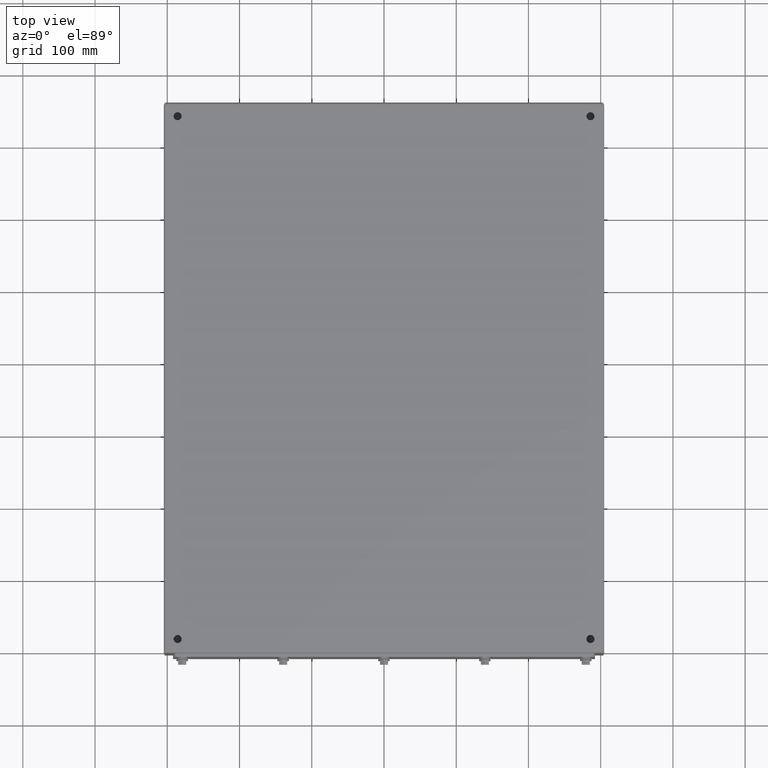
[diagram: clean part render]
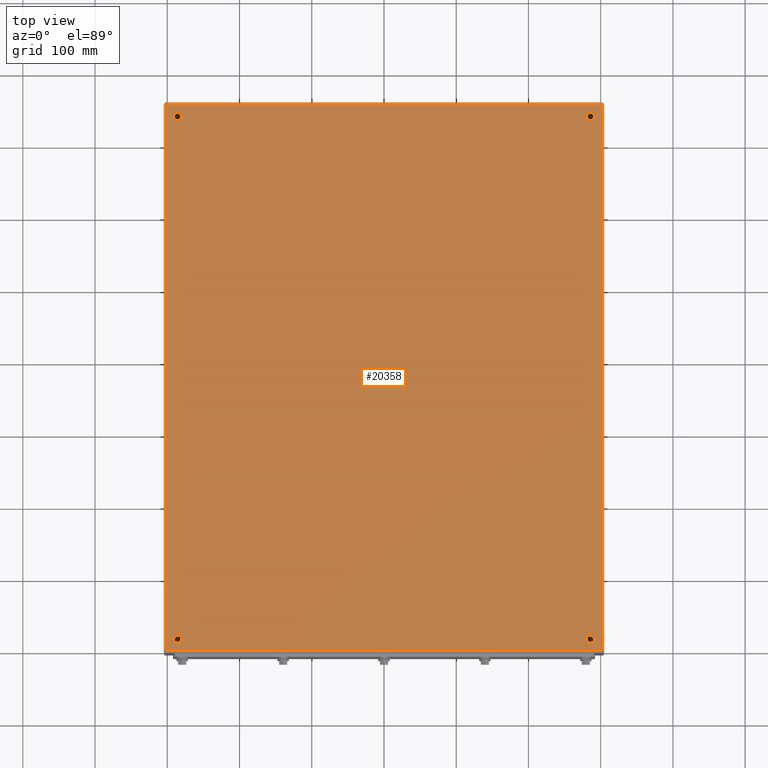
[diagram: same view with one face highlighted and labeled with its STEP entity id]
A machine part, top view. The second image highlights one B-rep face of the part: STEP entity #20358.
In plain terms, the highlighted planar face has unit normal (-0, -0, -1).
Its self-contained STEP definition (entity closure, byte-faithful):
#770=FACE_BOUND('',#3255,.T.);
#771=FACE_BOUND('',#3256,.T.);
#772=FACE_BOUND('',#3257,.T.);
#773=FACE_BOUND('',#3258,.T.);
#1454=PLANE('',#22078);
#2042=FACE_OUTER_BOUND('',#3254,.T.);
#3254=EDGE_LOOP('',(#14171,#14172,#14173,#14174));
#3255=EDGE_LOOP('',(#14175));
#3256=EDGE_LOOP('',(#14176));
#3257=EDGE_LOOP('',(#14177));
#3258=EDGE_LOOP('',(#14178));
#4671=LINE('',#31758,#6163);
#4678=LINE('',#31779,#6170);
#4684=LINE('',#31798,#6176);
#4690=LINE('',#31816,#6182);
#6163=VECTOR('',#24848,0.393700787401575);
#6170=VECTOR('',#24877,0.393700787401575);
#6176=VECTOR('',#24905,0.393700787401575);
#6182=VECTOR('',#24933,0.393700787401575);
#7335=CIRCLE('',#21902,0.21875);
#7337=CIRCLE('',#21905,0.21875);
#7339=CIRCLE('',#21908,0.21875);
#7341=CIRCLE('',#21911,0.21875);
#8411=VERTEX_POINT('',#30496);
#8413=VERTEX_POINT('',#30502);
#8415=VERTEX_POINT('',#30508);
#8417=VERTEX_POINT('',#30514);
#8579=VERTEX_POINT('',#31755);
#8580=VERTEX_POINT('',#31757);
#8583=VERTEX_POINT('',#31778);
#8585=VERTEX_POINT('',#31796);
#10358=EDGE_CURVE('',#8411,#8411,#7335,.T.);
#10361=EDGE_CURVE('',#8413,#8413,#7337,.T.);
#10364=EDGE_CURVE('',#8415,#8415,#7339,.T.);
#10367=EDGE_CURVE('',#8417,#8417,#7341,.T.);
#10647=EDGE_CURVE('',#8580,#8579,#4671,.T.);
#10658=EDGE_CURVE('',#8583,#8580,#4678,.T.);
#10668=EDGE_CURVE('',#8579,#8585,#4684,.T.);
#10678=EDGE_CURVE('',#8585,#8583,#4690,.T.);
#14171=ORIENTED_EDGE('',*,*,#10647,.T.);
#14172=ORIENTED_EDGE('',*,*,#10668,.T.);
#14173=ORIENTED_EDGE('',*,*,#10678,.T.);
#14174=ORIENTED_EDGE('',*,*,#10658,.T.);
#14175=ORIENTED_EDGE('',*,*,#10358,.T.);
#14176=ORIENTED_EDGE('',*,*,#10361,.T.);
#14177=ORIENTED_EDGE('',*,*,#10364,.T.);
#14178=ORIENTED_EDGE('',*,*,#10367,.T.);
#20358=ADVANCED_FACE('',(#2042,#770,#771,#772,#773),#1454,.F.);
#21902=AXIS2_PLACEMENT_3D('',#30497,#24358,#24359);
#21905=AXIS2_PLACEMENT_3D('',#30503,#24365,#24366);
#21908=AXIS2_PLACEMENT_3D('',#30509,#24372,#24373);
#21911=AXIS2_PLACEMENT_3D('',#30515,#24379,#24380);
#22078=AXIS2_PLACEMENT_3D('',#31831,#24958,#24959);
#24358=DIRECTION('center_axis',(0.,0.,1.));
#24359=DIRECTION('ref_axis',(1.,0.,0.));
#24365=DIRECTION('center_axis',(0.,0.,1.));
#24366=DIRECTION('ref_axis',(1.,0.,0.));
#24372=DIRECTION('center_axis',(0.,0.,1.));
#24373=DIRECTION('ref_axis',(1.,0.,0.));
#24379=DIRECTION('center_axis',(0.,0.,1.));
#24380=DIRECTION('ref_axis',(1.,0.,0.));
#24848=DIRECTION('',(-1.,0.,0.));
#24877=DIRECTION('',(1.8800919714783E-16,-1.,0.));
#24905=DIRECTION('',(-3.05514945365224E-16,1.,0.));
#24933=DIRECTION('',(1.,0.,0.));
#24958=DIRECTION('center_axis',(0.,0.,1.));
#24959=DIRECTION('ref_axis',(1.,0.,0.));
#30496=CARTESIAN_POINT('',(0.531249999999996,0.750000000000002,0.));
#30497=CARTESIAN_POINT('Origin',(0.749999999999996,0.750000000000002,0.));
#30502=CARTESIAN_POINT('',(23.03125,0.750000000000002,0.));
#30503=CARTESIAN_POINT('Origin',(23.25,0.750000000000002,0.));
#30508=CARTESIAN_POINT('',(0.531249999999997,29.25,0.));
#30509=CARTESIAN_POINT('Origin',(0.749999999999997,29.25,0.));
#30514=CARTESIAN_POINT('',(23.03125,29.25,0.));
#30515=CARTESIAN_POINT('Origin',(23.25,29.25,0.));
#31755=CARTESIAN_POINT('',(0.120875000000005,0.120875000000006,-1.09273919746571E-17));
#31757=CARTESIAN_POINT('',(23.879125,0.120875000000001,-1.09273919746571E-17));
#31758=CARTESIAN_POINT('',(17.9395625,0.120875000000001,0.));
#31778=CARTESIAN_POINT('',(23.879125,29.879125,-3.27821759239712E-17));
#31779=CARTESIAN_POINT('',(23.879125,22.4395625,0.));
#31796=CARTESIAN_POINT('',(0.120874999999994,29.879125,-3.27821759239712E-17));
#31798=CARTESIAN_POINT('',(0.120875000000003,7.5604375,0.));
#31816=CARTESIAN_POINT('',(6.06043749999999,29.879125,0.));
#31831=CARTESIAN_POINT('Origin',(12.,15.,0.));